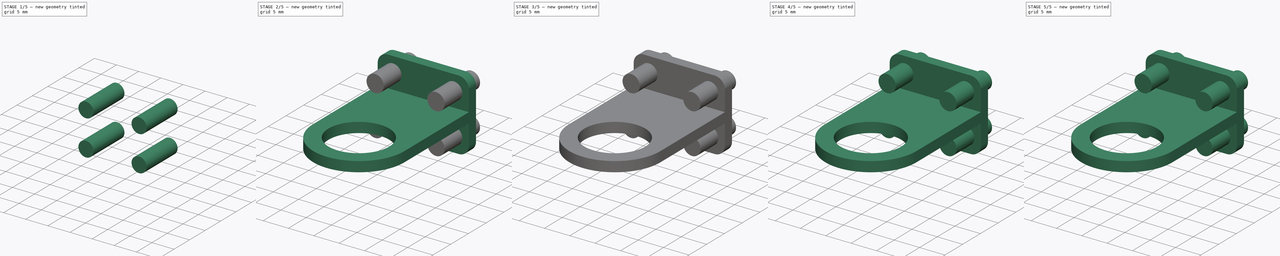
[diagram: build sequence overview — one tinted view per stage of 5, left to right]
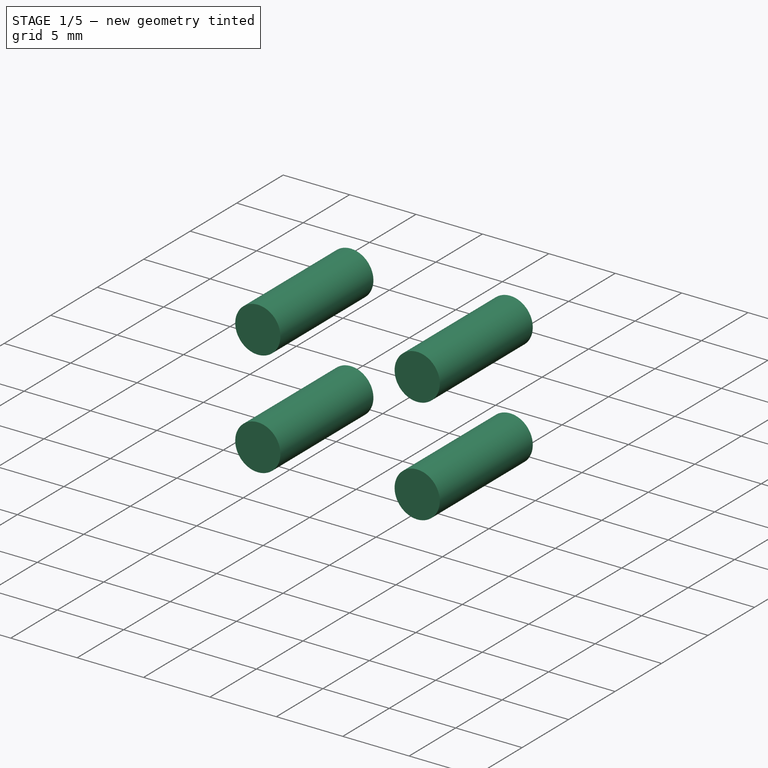
[diagram: stage 1 of 5 — iso view after this stage's code; geometry added in this stage tinted green]
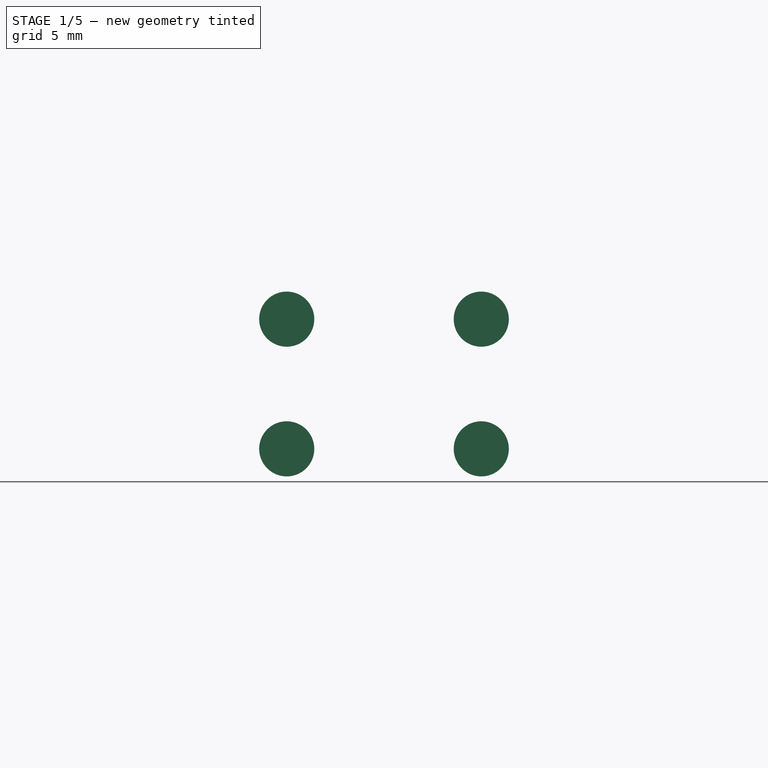
[diagram: stage 1 of 5 — front view after this stage's code; geometry added in this stage tinted green]
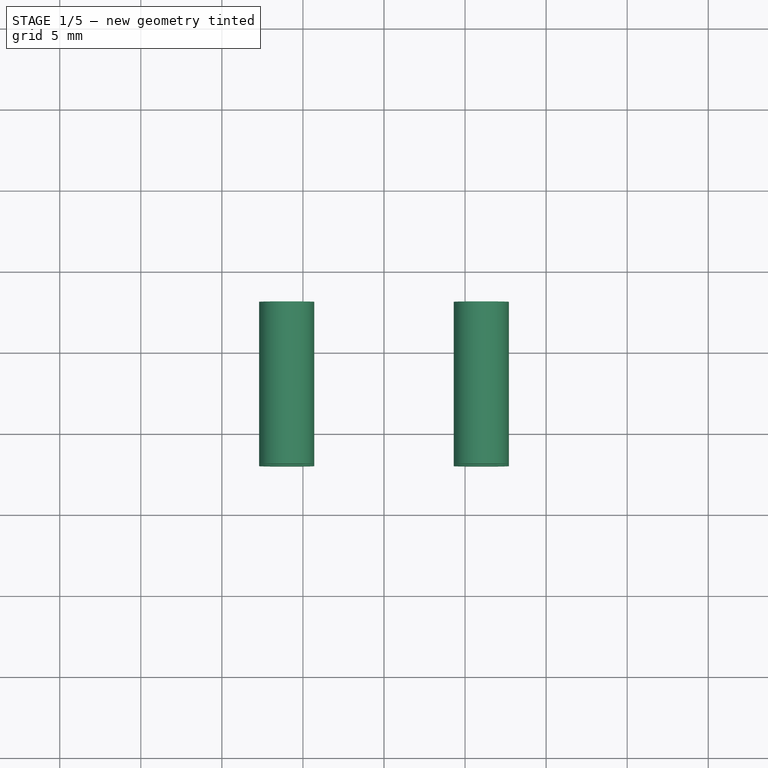
[diagram: stage 1 of 5 — top view after this stage's code; geometry added in this stage tinted green]
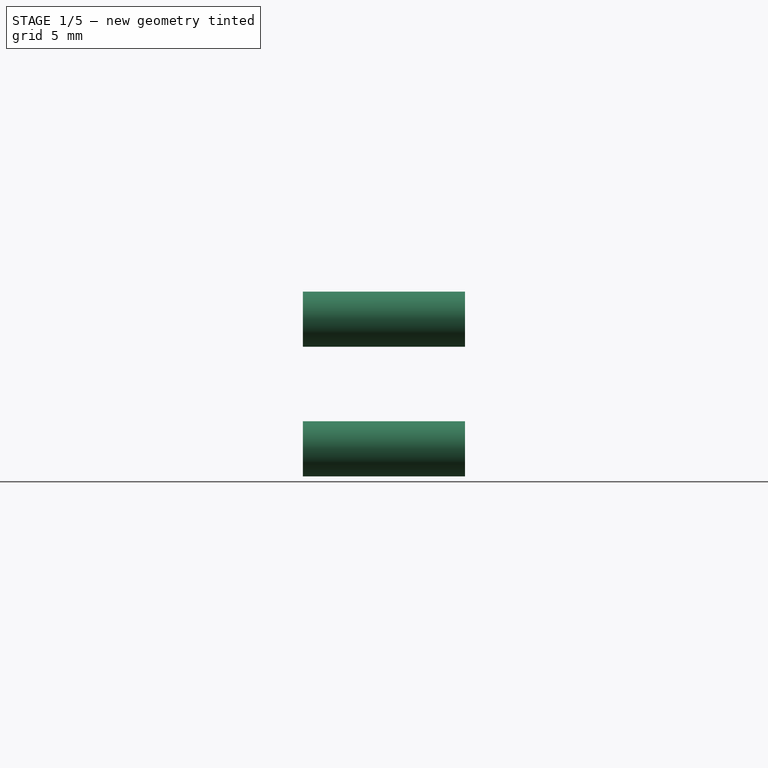
[diagram: stage 1 of 5 — right view after this stage's code; geometry added in this stage tinted green]
FCSTD DOCUMENT  (FreeCAD 0.19R)
Label: CameraHolder
License: All rights reserved
LicenseURL: http://en.wikipedia.org/wiki/All_rights_reserved
objects: Part::Cylinder×8, Part::Cut×4, Part::Feature×3, Part::MultiFuse×3, Sketcher::SketchObject×1, Part::Extrusion×1, Part::Box×1, Part::Fillet×1
note: 22 computed .brp shape members not serialized (recipe doc carries the construction recipe); baked Part::Feature solids carry a one-line shape summary decoded from their .brp

FEATURE [Part::Feature] Cut003001  label="CameraHolder001"
  shape: bbox 18 x 29.15 x 14 mm, 27 faces (baked)
FEATURE [Part::Cylinder] Cylinder006
  Angle = 360
  AttacherType = Attacher::AttachEngine3D
  Height = 10
  Placement = pos=(6,3,-3) rot=(1,0,0;1.5708rad)
  Radius = 1.7
FEATURE [Part::Cylinder] Cylinder007
  Angle = 360
  AttacherType = Attacher::AttachEngine3D
  Height = 10
  Placement = pos=(-6,3,-3) rot=(1,0,0;1.5708rad)
  Radius = 1.7
FEATURE [Part::Cylinder] Cylinder008
  Angle = 360
  AttacherType = Attacher::AttachEngine3D
  Height = 10
  Placement = pos=(6,3,5) rot=(1,0,0;1.5708rad)
  Radius = 1.7
FEATURE [Part::Cylinder] Cylinder009
  Angle = 360
  AttacherType = Attacher::AttachEngine3D
  Height = 10
  Placement = pos=(-6,3,5) rot=(1,0,0;1.5708rad)
  Radius = 1.7
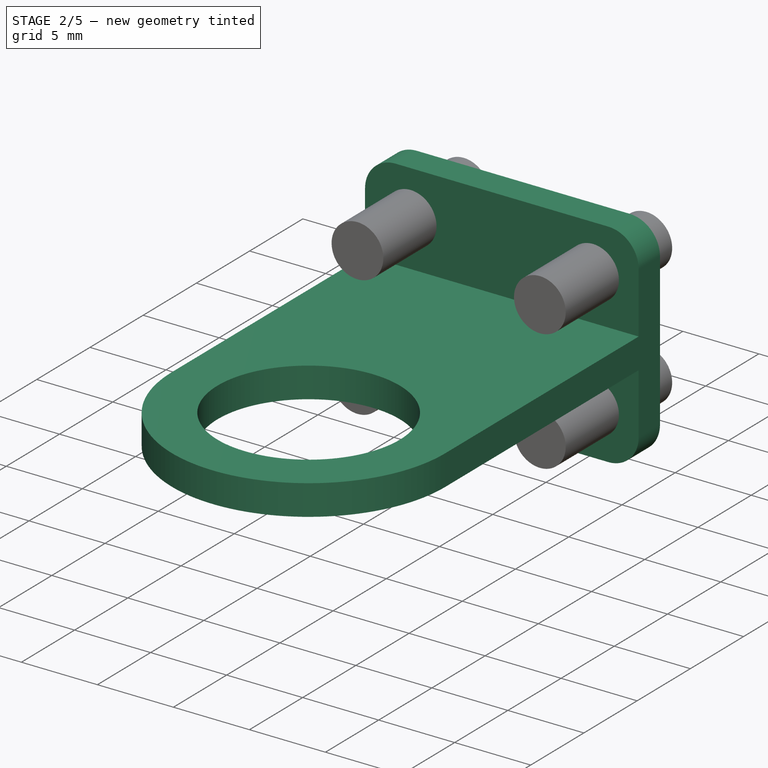
[diagram: stage 2 of 5 — iso view after this stage's code; geometry added in this stage tinted green]
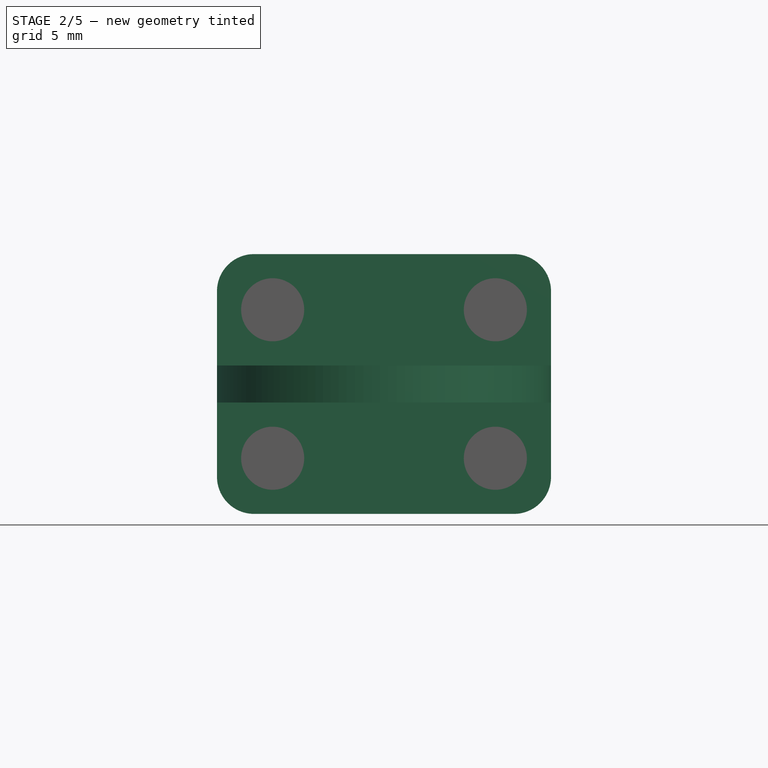
[diagram: stage 2 of 5 — front view after this stage's code; geometry added in this stage tinted green]
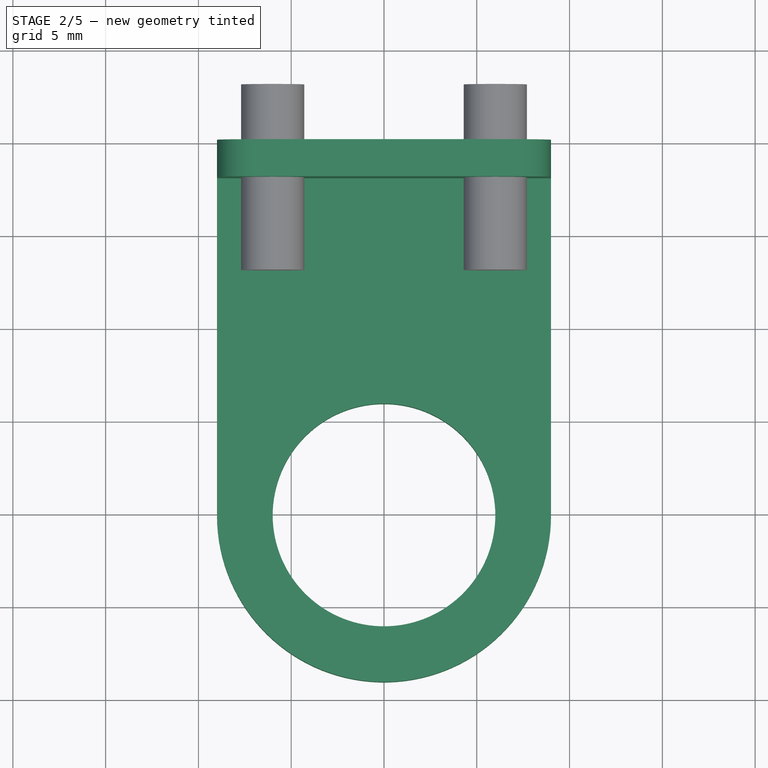
[diagram: stage 2 of 5 — top view after this stage's code; geometry added in this stage tinted green]
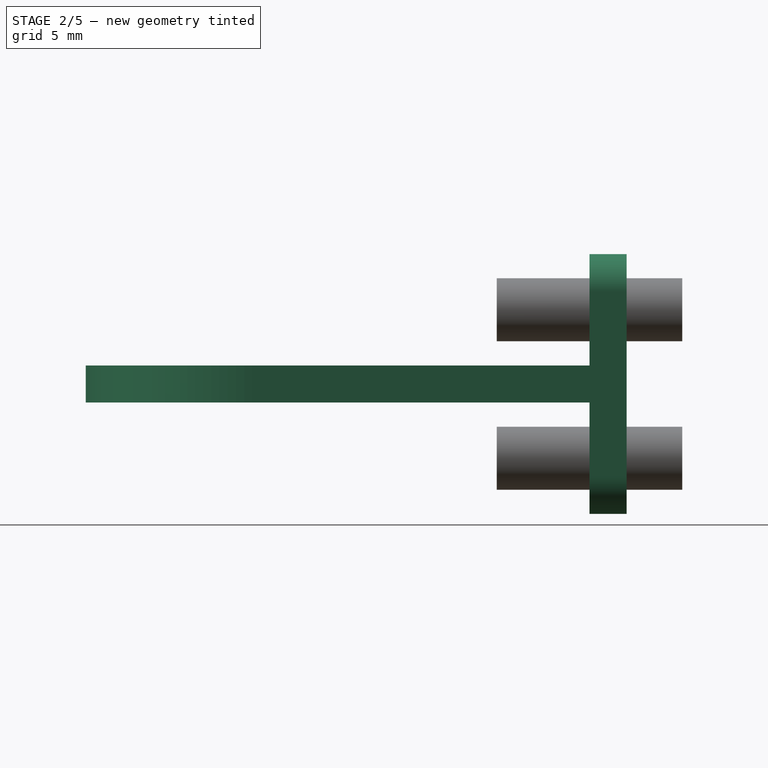
[diagram: stage 2 of 5 — right view after this stage's code; geometry added in this stage tinted green]
FEATURE [Part::Cylinder] Cylinder001
  Angle = 360
  AttacherType = Attacher::AttachEngine3D
  Height = 10
  Placement = pos=(-6,3,5) rot=(1,0,0;1.5708rad)
  Radius = 1.7
FEATURE [Part::Feature] Fusion001
  shape: bbox 18 x 29.15 x 14 mm, 23 faces (baked)
FEATURE [Part::Cut] Cut
  Base = -> Fusion001
  Tool = -> Cylinder001
FEATURE [Part::MultiFuse] Fusion002
  Shapes = -> [Cut003001,Cylinder006,Cylinder007,Cylinder008,Cylinder009]
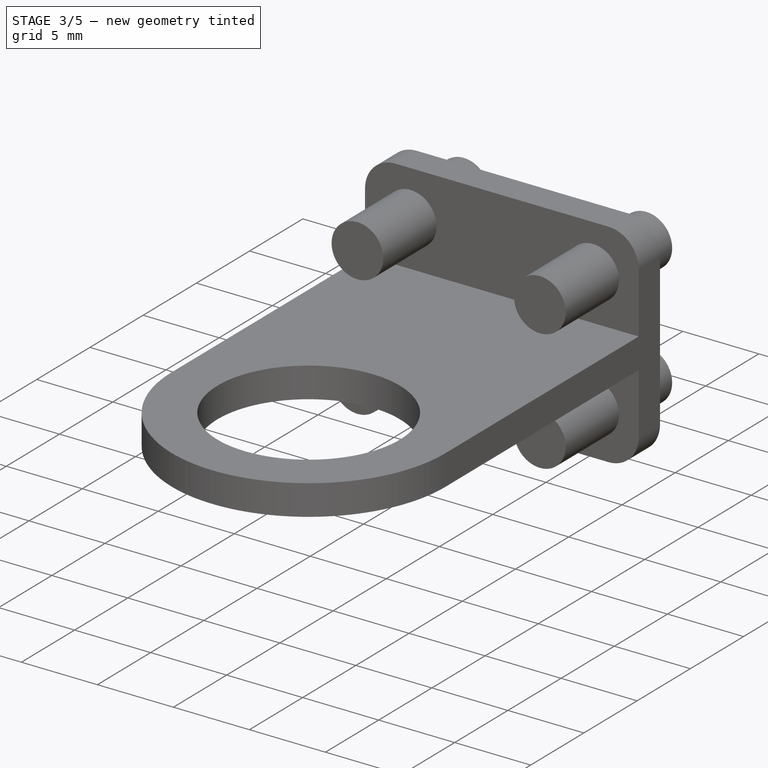
[diagram: stage 3 of 5 — iso view after this stage's code; geometry added in this stage tinted green]
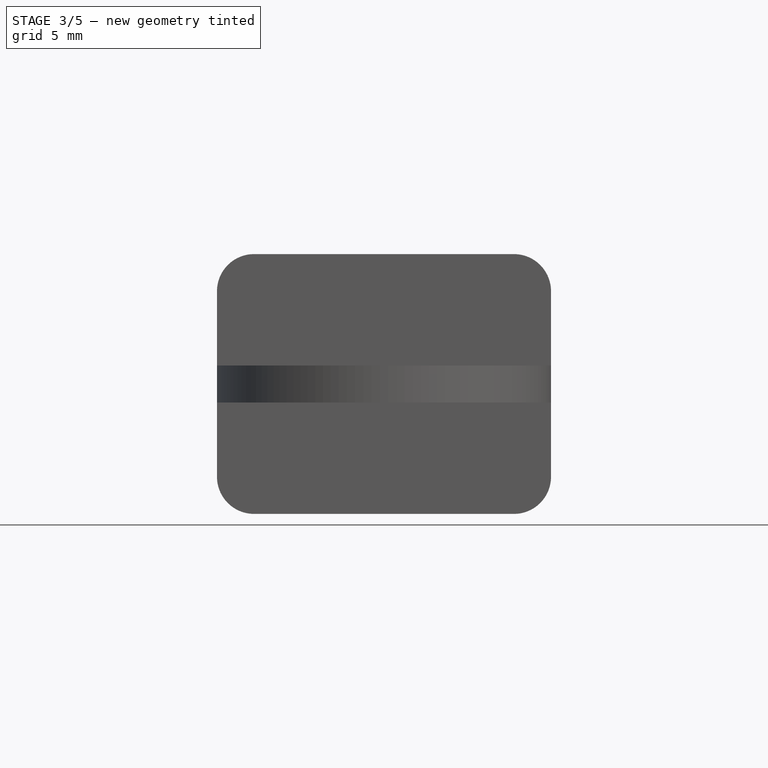
[diagram: stage 3 of 5 — front view after this stage's code; geometry added in this stage tinted green]
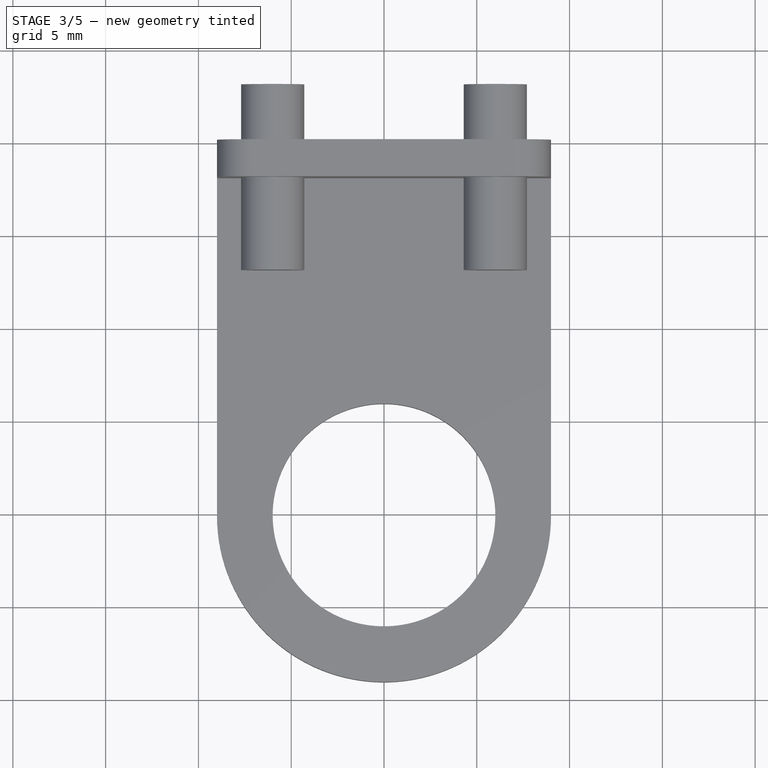
[diagram: stage 3 of 5 — top view after this stage's code; geometry added in this stage tinted green]
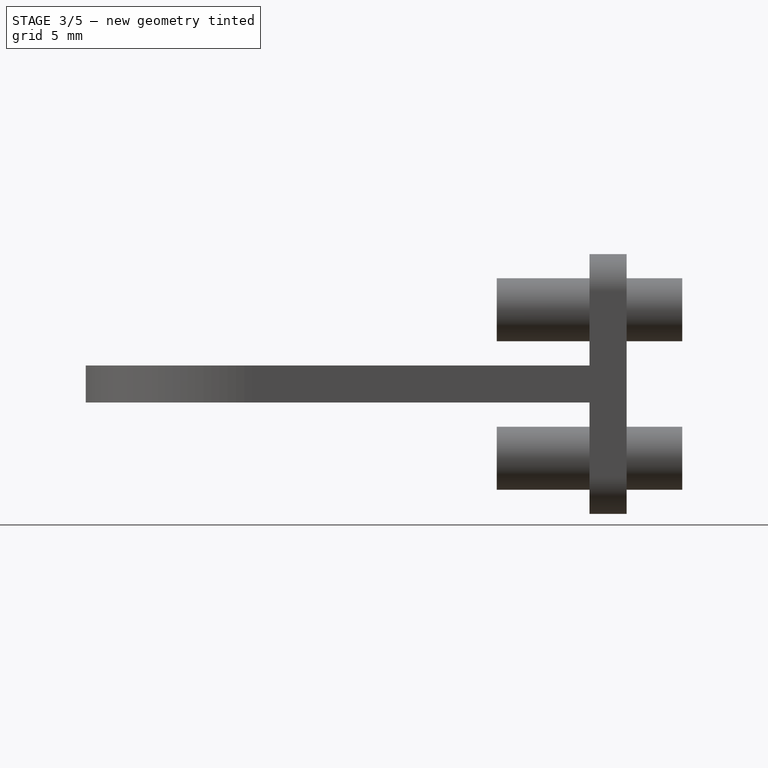
[diagram: stage 3 of 5 — right view after this stage's code; geometry added in this stage tinted green]
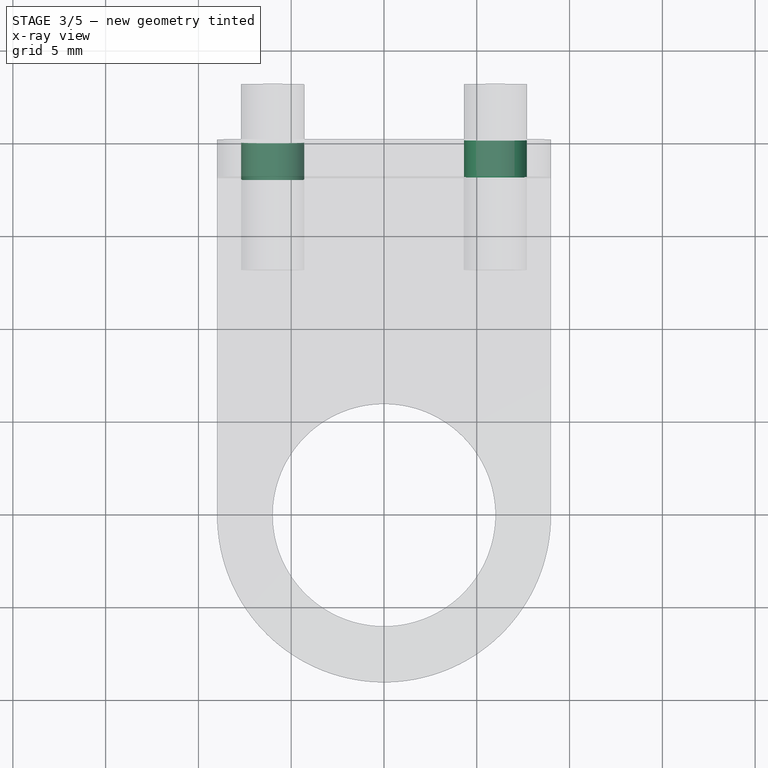
[diagram: stage 3 of 5 — x-ray composite at the top view; earlier geometry ghosted, this stage's added geometry solid]
FEATURE [Part::Cylinder] Cylinder002
  Angle = 360
  AttacherType = Attacher::AttachEngine3D
  Height = 10
  Placement = pos=(6,3,5) rot=(1,0,0;1.5708rad)
  Radius = 1.7
FEATURE [Part::Cylinder] Cylinder004
  Angle = 360
  AttacherType = Attacher::AttachEngine3D
  Height = 10
  Placement = pos=(-6,3,-3) rot=(1,0,0;1.5708rad)
  Radius = 1.7
FEATURE [Part::Cut] Cut001
  Base = -> Cut
  Tool = -> Cylinder002
FEATURE [Part::Cut] Cut002
  Base = -> Cut001
  Tool = -> Cylinder004
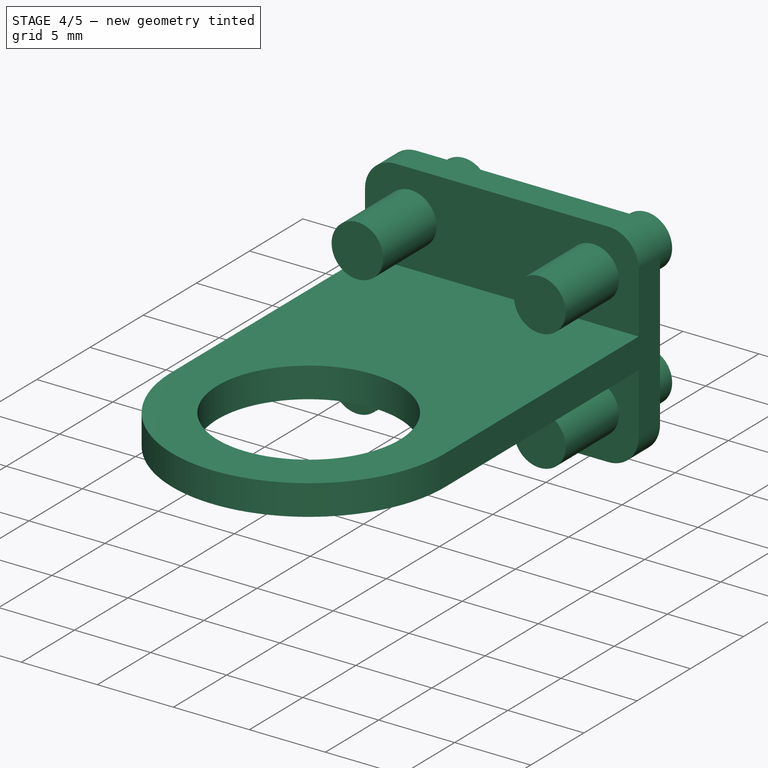
[diagram: stage 4 of 5 — iso view after this stage's code; geometry added in this stage tinted green]
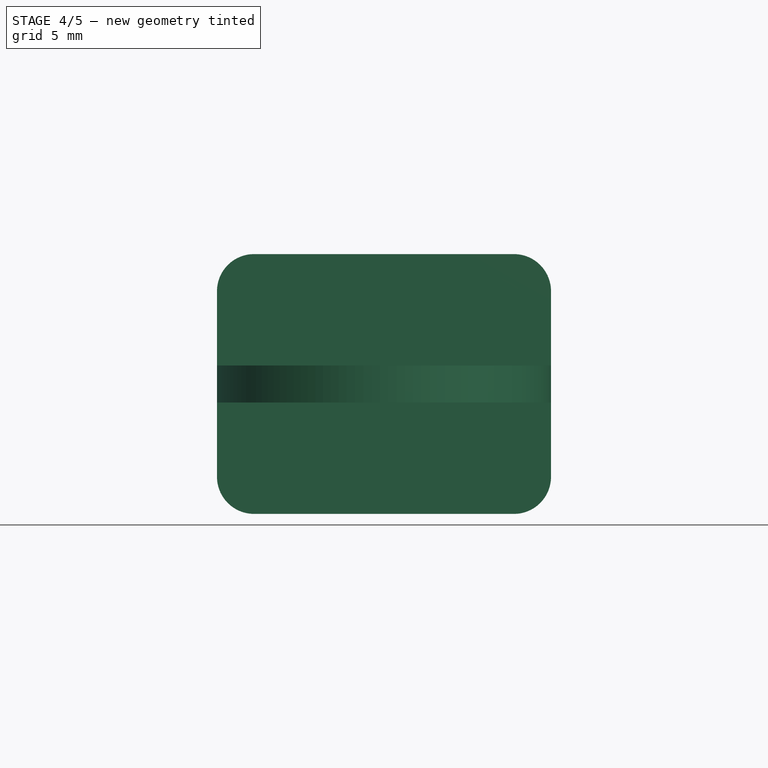
[diagram: stage 4 of 5 — front view after this stage's code; geometry added in this stage tinted green]
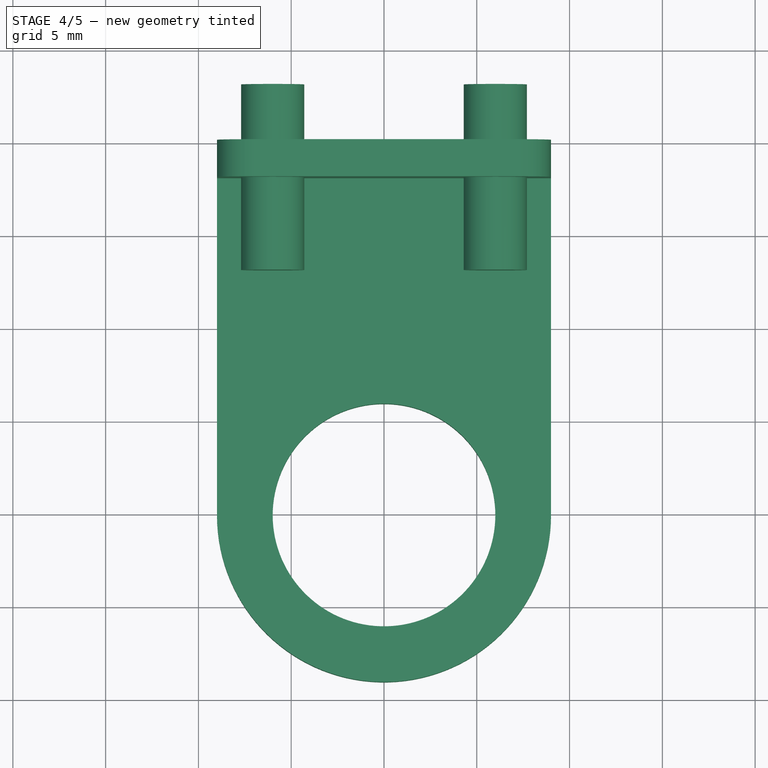
[diagram: stage 4 of 5 — top view after this stage's code; geometry added in this stage tinted green]
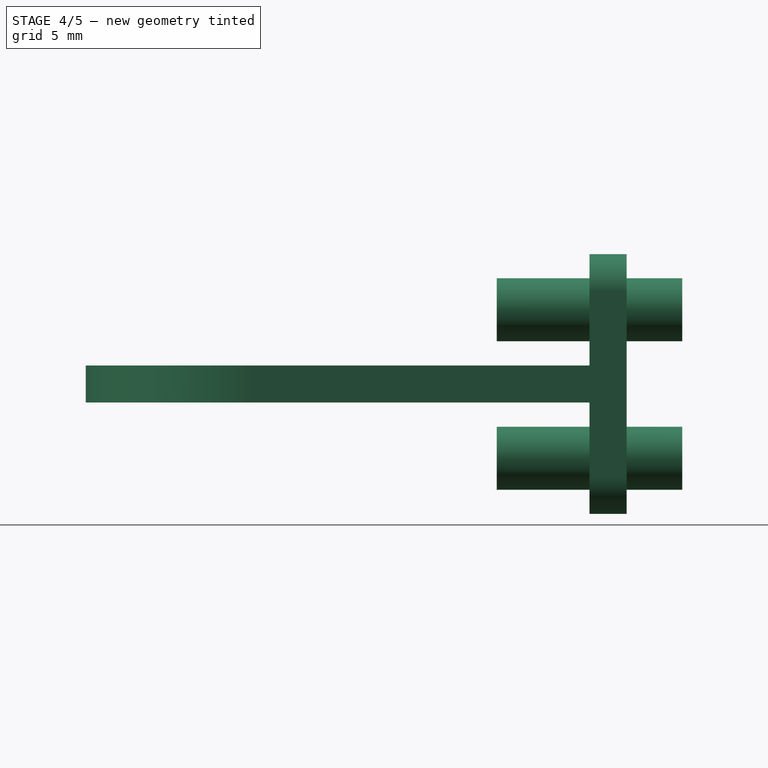
[diagram: stage 4 of 5 — right view after this stage's code; geometry added in this stage tinted green]
FEATURE [Part::Cylinder] Cylinder005
  Angle = 360
  AttacherType = Attacher::AttachEngine3D
  Height = 10
  Placement = pos=(6,3,-3) rot=(1,0,0;1.5708rad)
  Radius = 1.7
FEATURE [Part::Cut] Cut003  label="CameraHolder"
  Base = -> Cut002
  Tool = -> Cylinder005
FEATURE [Part::MultiFuse] Fusion003
  Shapes = -> [Cut003,Fusion002]
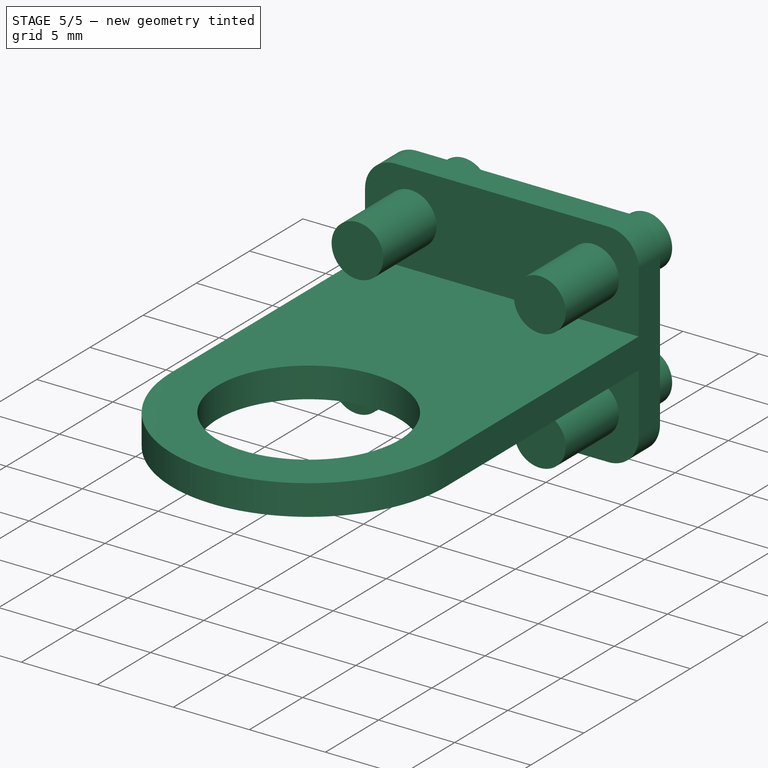
[diagram: stage 5 of 5 — iso view after this stage's code; geometry added in this stage tinted green]
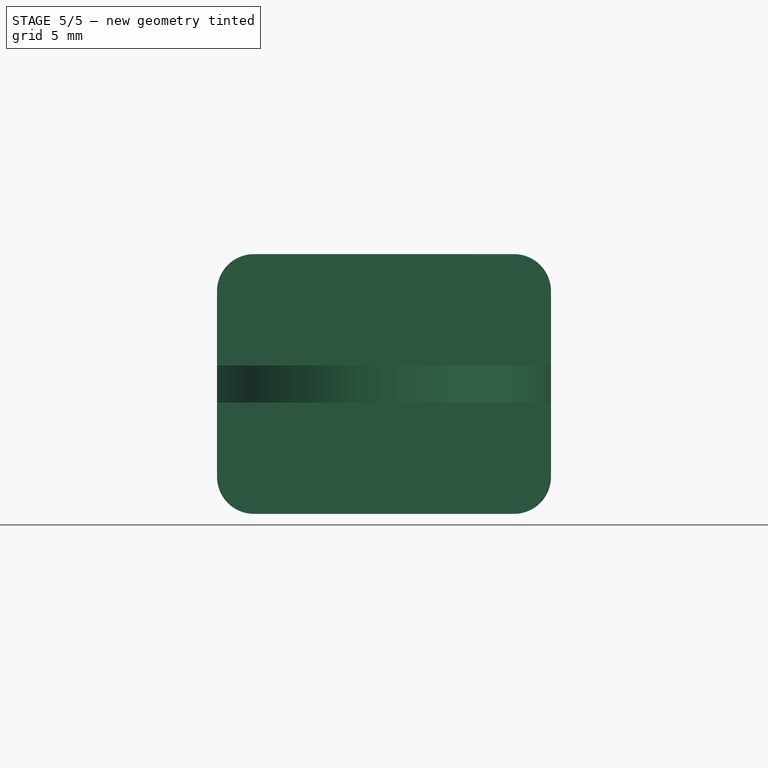
[diagram: stage 5 of 5 — front view after this stage's code; geometry added in this stage tinted green]
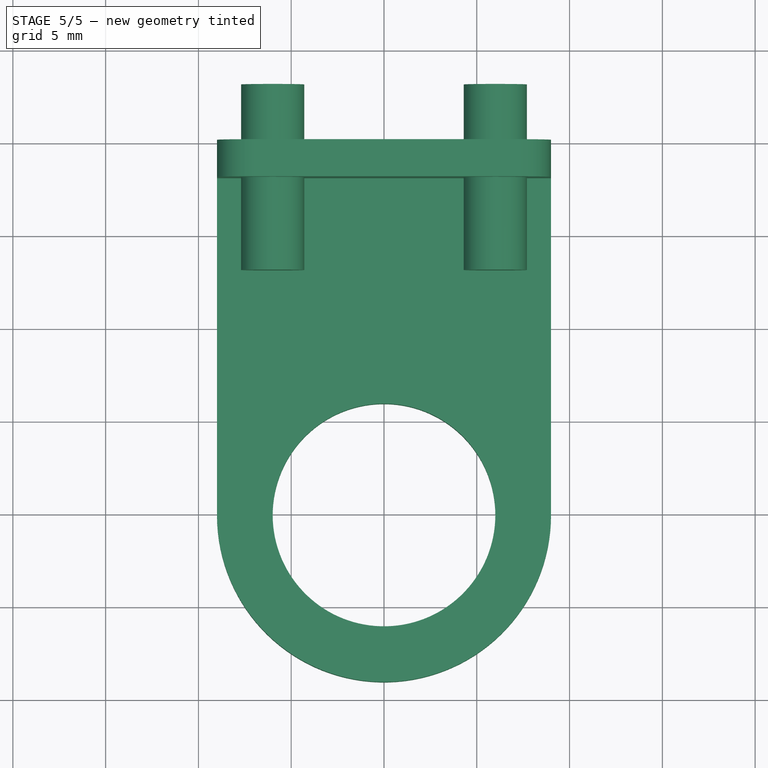
[diagram: stage 5 of 5 — top view after this stage's code; geometry added in this stage tinted green]
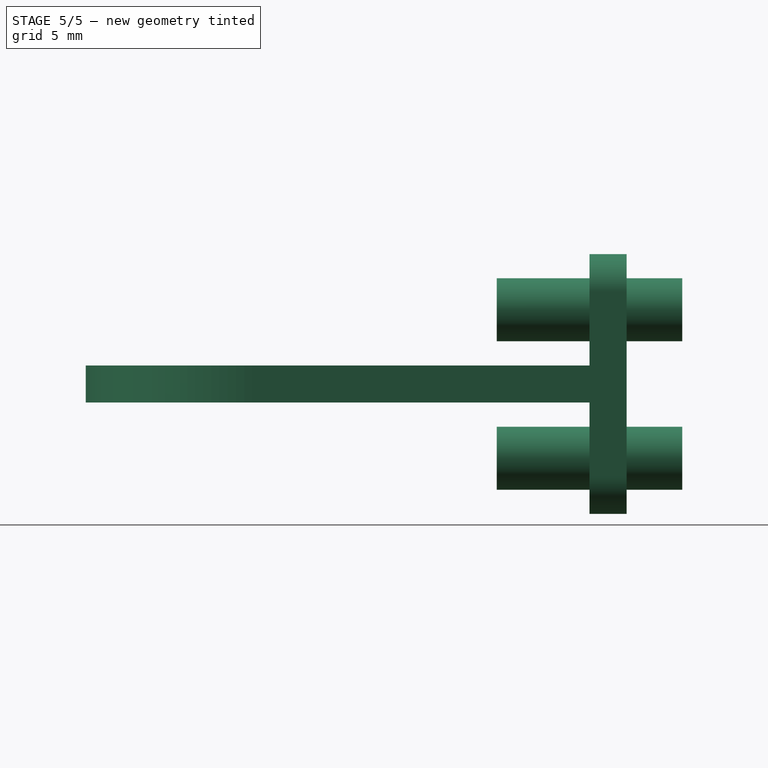
[diagram: stage 5 of 5 — right view after this stage's code; geometry added in this stage tinted green]
FEATURE [Sketcher::SketchObject] Sketch
  FullyConstrained = true
  sketch-geometry (14):
    g0: Circle CenterX=0 CenterY=-20.15 CenterZ=0 NormalX=0 NormalY=0 NormalZ=1 AngleXU=0 Radius=6
    g1: GeomPoint X=0 Y=-14.15 Z=0
    g2: ArcOfCircle CenterX=0 CenterY=-20.15 CenterZ=0 NormalX=0 NormalY=0 NormalZ=1 AngleXU=0 Radius=9 StartAngle=3.14159 EndAngle=6.28319
    g3: GeomPoint X=-6 Y=-20.15 Z=0
    g4: GeomPoint X=6 Y=-20.15 Z=0
    g5: LineSegment StartX=0 StartY=-20.15 StartZ=0 EndX=-6 EndY=-20.15 EndZ=0
    g6: LineSegment StartX=-6 StartY=-20.15 StartZ=0 EndX=-9 EndY=-20.15 EndZ=0
    g7: LineSegment StartX=0 StartY=-20.15 StartZ=0 EndX=6 EndY=-20.15 EndZ=0
    g8: LineSegment StartX=6 StartY=-20.15 StartZ=0 EndX=9 EndY=-20.15 EndZ=0
    g9: GeomPoint X=-9 Y=0 Z=0
    g10: GeomPoint X=9 Y=0 Z=0
    g11: LineSegment StartX=-9 StartY=0 StartZ=0 EndX=-9 EndY=-20.15 EndZ=0
    g12: LineSegment StartX=-9 StartY=0 StartZ=0 EndX=9 EndY=0 EndZ=0
    g13: LineSegment StartX=9 StartY=0 StartZ=0 EndX=9 EndY=-20.15 EndZ=0
  constraints (31):
    c: PointOnObject(g0,g-2)
    c: Radius(g0) = 6
    c: PointOnObject(g1,g0)
    c: PointOnObject(g1,g-2)
    c: Coincident(g2,g0)
    c: PointOnObject(g3,g0)
    c: PointOnObject(g4,g0)
    c: Coincident(g5,g0)
    c: Coincident(g5,g3)
    c: Horizontal(g5)
    c: Coincident(g6,g3)
    c: Coincident(g6,g2)
    c: Horizontal(g6)
    c: Coincident(g7,g0)
    c: Coincident(g7,g4)
    c: Horizontal(g7)
    c: Coincident(g8,g2)
    c: Horizontal(g8)
    c: PointOnObject(g9,g-1)
    c: PointOnObject(g10,g-1)
    c: Coincident(g11,g9)
    c: Coincident(g11,g2)
    c: Coincident(g12,g11)
    c: Coincident(g12,g10)
    c: Coincident(g13,g12)
    c: Coincident(g13,g2)
    c: Vertical(g13)
    c: Vertical(g11)
    c: Distance(g6) = 3
    c: Distance(g-1,g1) = 14.15
    c: Coincident(g8,g4)
FEATURE [Part::Extrusion] Extrude
  Base = -> Sketch
  Dir = (0,0,1)
  DirMode = 2
  FaceMakerClass = Part::FaceMakerBullseye
  LengthFwd = 2
  LengthRev = 0
  Solid = true
  Symmetric = false
FEATURE [Part::Feature] Extrude001
  shape: bbox 18 x 29.15 x 2 mm, 7 faces (baked)
FEATURE [Part::Box] Box  label="Cube"
  AttacherType = Attacher::AttachEngine3D
  Height = 14
  Length = 18
  Placement = pos=(-9,-2,-4) rot=(0,0,1;0rad)
  Width = 2
FEATURE [Part::Fillet] Fillet
  Base = -> Box
  Edges = 4 edges r=2: [Edge2,Edge4,Edge6,Edge8]
  Placement = pos=(0,0,-2) rot=(0,0,1;0rad)
FEATURE [Part::MultiFuse] Fusion
  Shapes = -> [Extrude001,Fillet]
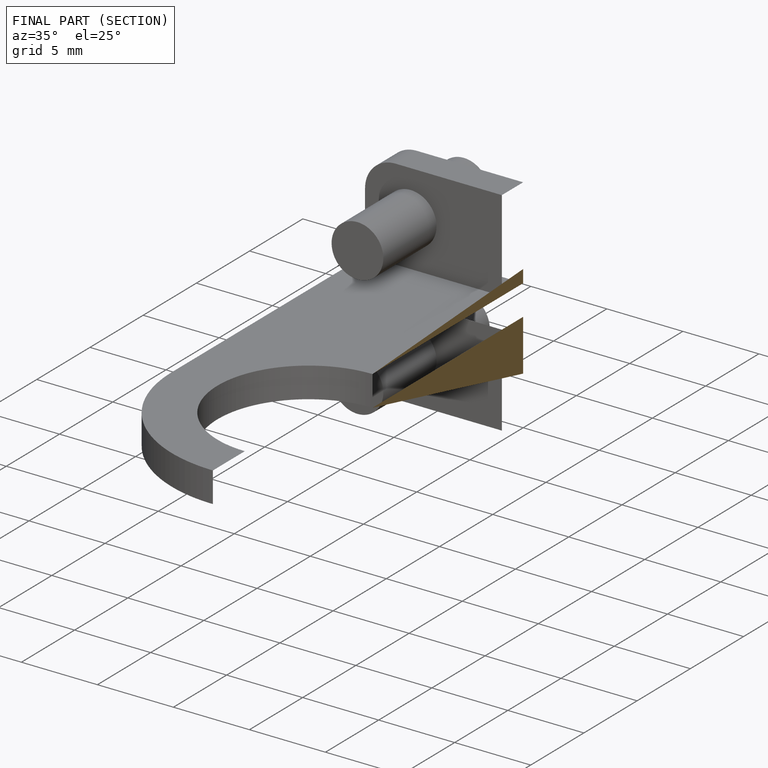
[diagram: finished part — half-section view (interior)]
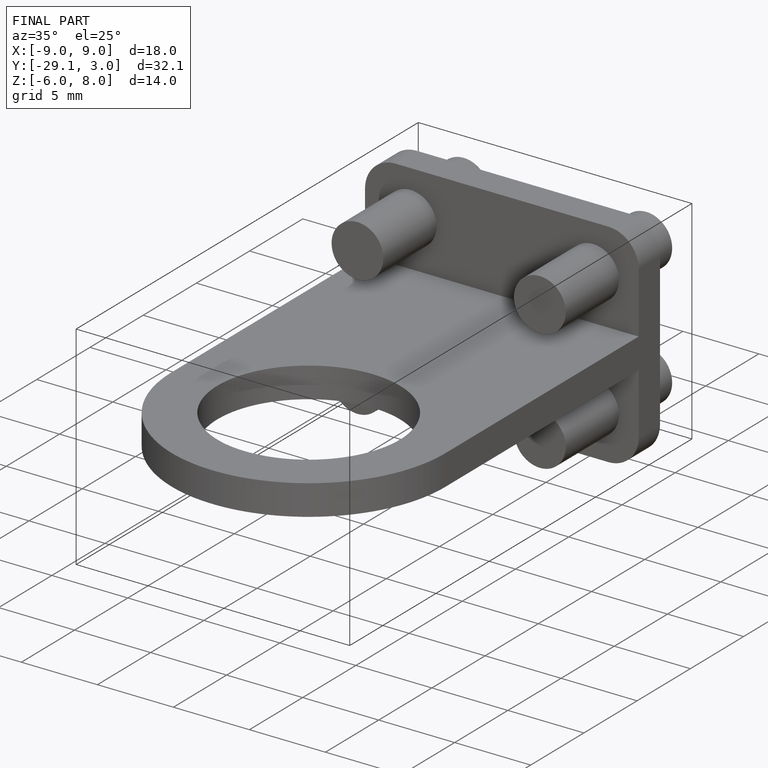
[diagram: finished part — iso view with bounding-box wireframe]
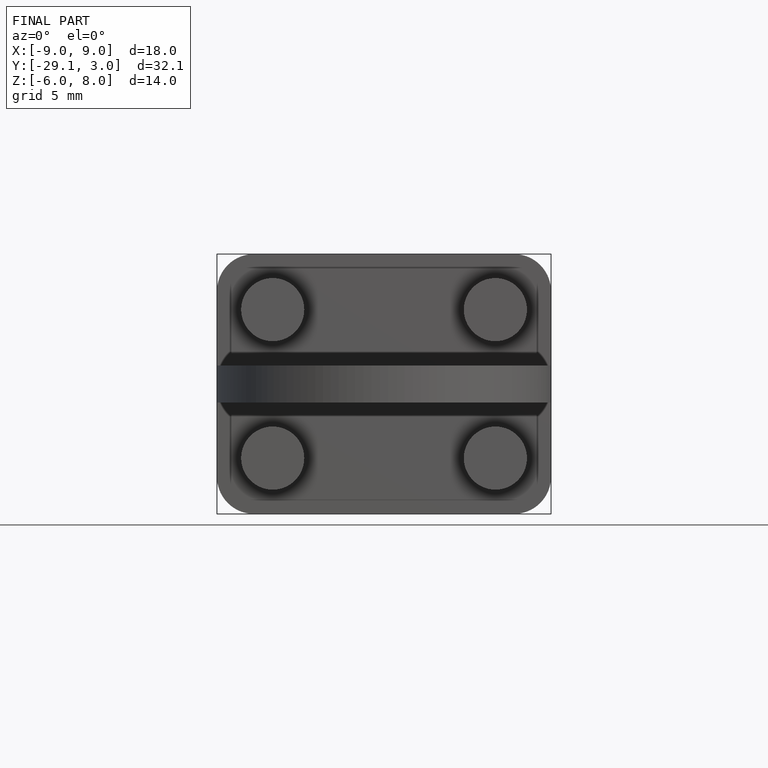
[diagram: finished part — front view with bounding-box wireframe]
